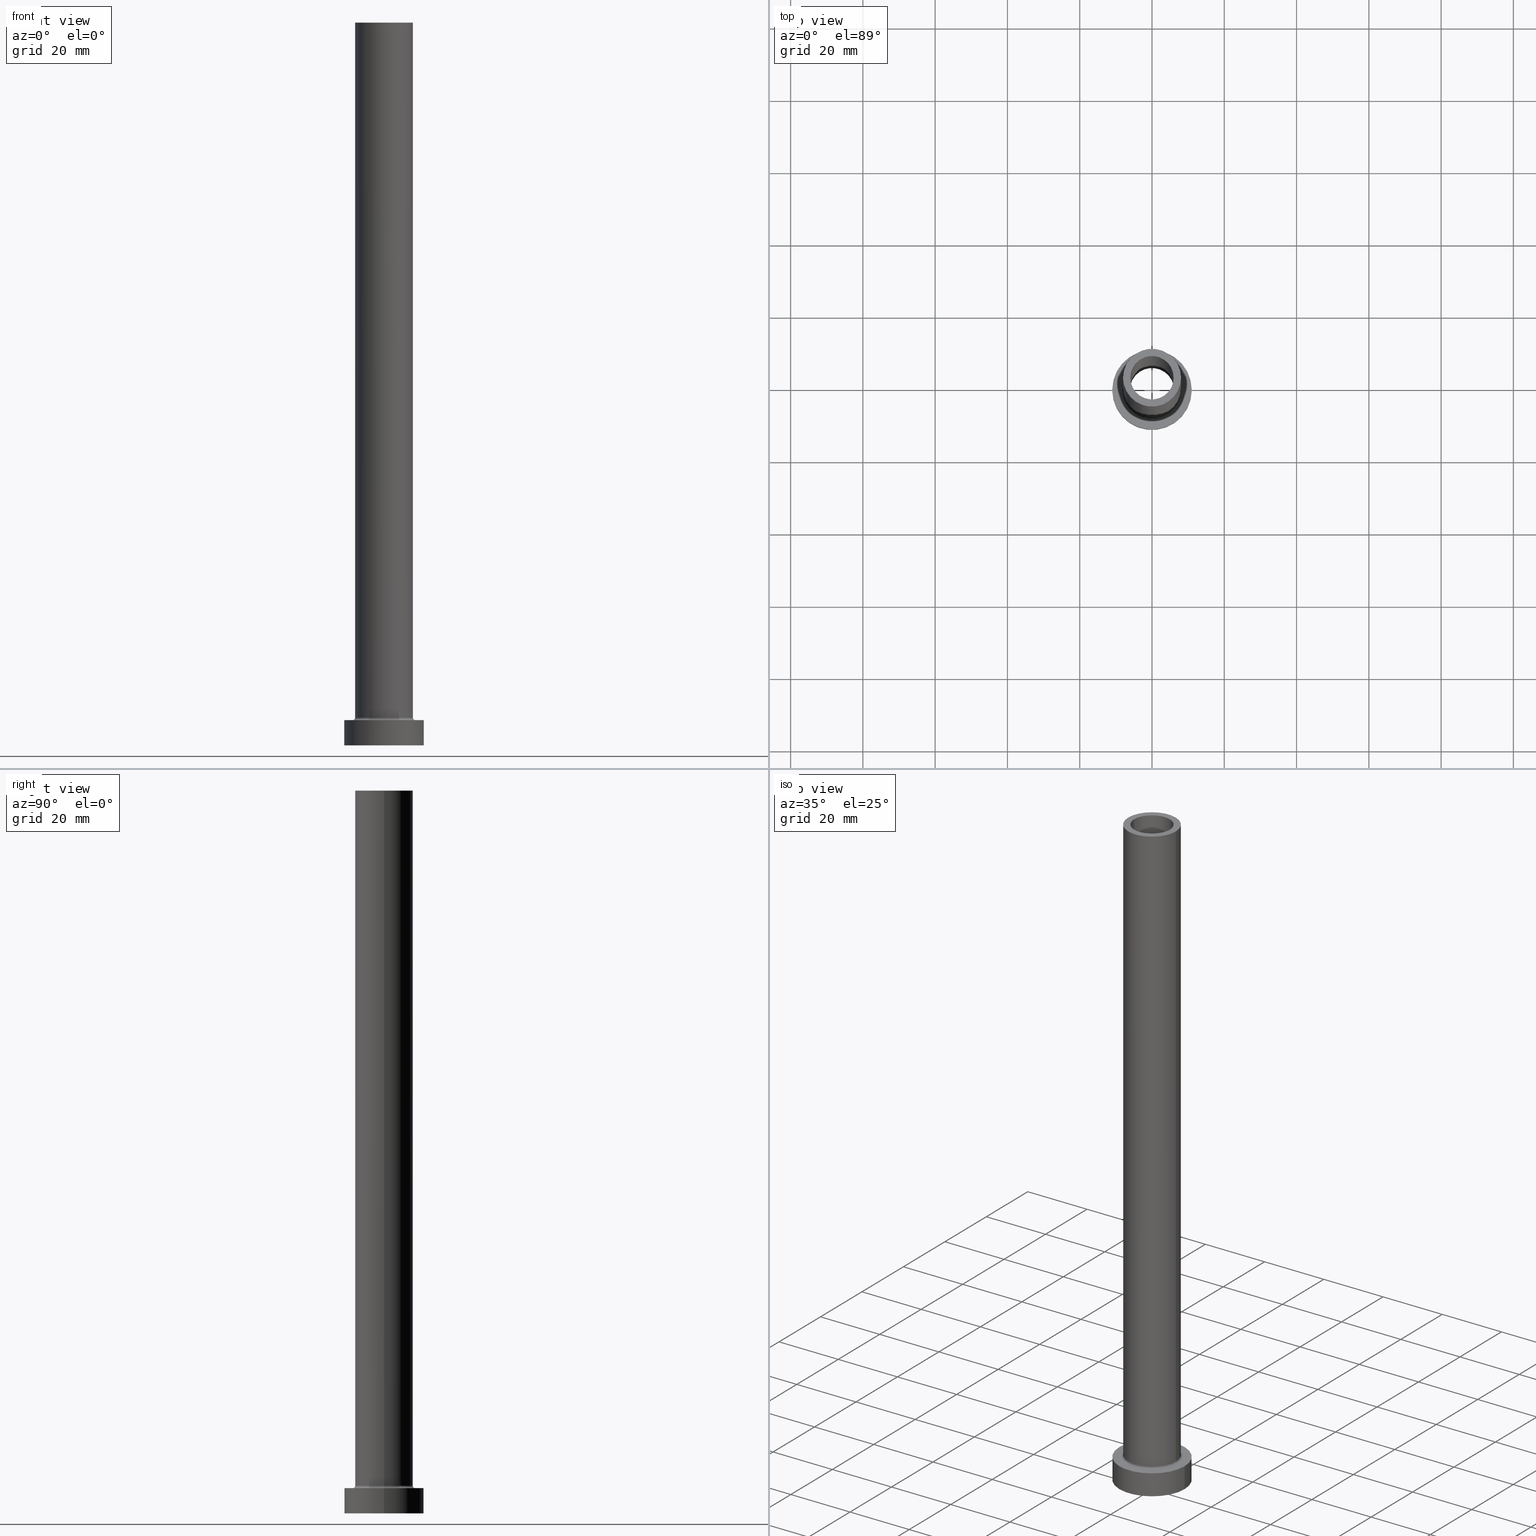
[diagram: canonical four-view strip — front | top / right | iso, engineering-drawing reading convention]
A machine part, canonical four-view strip (front | top / right | iso — engineering-drawing reading convention). The complete STEP part file that produces these views, byte-faithful:
ISO-10303-21;
HEADER;
FILE_DESCRIPTION (( 'STEP AP203' ),
    '1' );
FILE_NAME ('bcd4.STEP',
    '2023-02-13T07:42:02',
    ( '' ),
    ( '' ),
    'SwSTEP 2.0',
    'SolidWorks 2019',
    '' );
FILE_SCHEMA (( 'CONFIG_CONTROL_DESIGN' ));
ENDSEC;

DATA;
#1 = APPROVAL_PERSON_ORGANIZATION ( #371, #75, #112 ) ;
#2 = AXIS2_PLACEMENT_3D ( 'NONE', #231, #338, #189 ) ;
#3 = LINE ( 'NONE', #73, #121 ) ;
#4 = CARTESIAN_POINT ( 'NONE',  ( 6.150000000000000355, 7.531577814756222064E-16, 155.0000000000000284 ) ) ;
#5 = AXIS2_PLACEMENT_3D ( 'NONE', #170, #323, #333 ) ;
#6 = DIRECTION ( 'NONE',  ( -1.000000000000000000, 0.000000000000000000, 0.000000000000000000 ) ) ;
#7 = CARTESIAN_POINT ( 'NONE',  ( 6.150000000000000355, 7.531577814756222064E-16, 0.000000000000000000 ) ) ;
#8 = CARTESIAN_POINT ( 'NONE',  ( 0.000000000000000000, 0.000000000000000000, 200.0000000000000000 ) ) ;
#9 = PRODUCT_DEFINITION ( 'NEZN�M�', '', #392, #167 ) ;
#10 = CIRCLE ( 'NONE', #322, 8.699999999999999289 ) ;
#11 = CIRCLE ( 'NONE', #272, 6.150000000000000355 ) ;
#12 = ORIENTED_EDGE ( 'NONE', *, *, #225, .F. ) ;
#13 = CARTESIAN_POINT ( 'NONE',  ( 0.000000000000000000, 0.000000000000000000, 155.0000000000000284 ) ) ;
#14 = EDGE_CURVE ( 'NONE', #309, #459, #436, .T. ) ;
#15 = DIRECTION ( 'NONE',  ( 0.000000000000000000, 0.000000000000000000, 1.000000000000000000 ) ) ;
#16 = EDGE_LOOP ( 'NONE', ( #320, #153, #417, #201 ) ) ;
#17 = CARTESIAN_POINT ( 'NONE',  ( -8.000000000000000000, 0.000000000000000000, 7.700000000000012612 ) ) ;
#18 = CIRCLE ( 'NONE', #34, 8.699999999999999289 ) ;
#19 = DIRECTION ( 'NONE',  ( 1.000000000000000000, 0.000000000000000000, 0.000000000000000000 ) ) ;
#20 = ORIENTED_EDGE ( 'NONE', *, *, #151, .T. ) ;
#21 = ORIENTED_EDGE ( 'NONE', *, *, #372, .T. ) ;
#22 = DIRECTION ( 'NONE',  ( -0.000000000000000000, -0.000000000000000000, -1.000000000000000000 ) ) ;
#23 = ADVANCED_FACE ( 'NONE', ( #95 ), #60, .T. ) ;
#24 = DIRECTION ( 'NONE',  ( 1.000000000000000000, 0.000000000000000000, 0.000000000000000000 ) ) ;
#25 = ORIENTED_EDGE ( 'NONE', *, *, #63, .T. ) ;
#26 = FACE_BOUND ( 'NONE', #298, .T. ) ;
#27 = APPLICATION_PROTOCOL_DEFINITION ( 'international standard', 'config_control_design', 1994, #139 ) ;
#28 = CIRCLE ( 'NONE', #78, 11.00000000000000000 ) ;
#29 = DIRECTION ( 'NONE',  ( -0.000000000000000000, -0.000000000000000000, -1.000000000000000000 ) ) ;
#30 = CC_DESIGN_PERSON_AND_ORGANIZATION_ASSIGNMENT ( #39, #140, ( #9 ) ) ;
#31 = DIRECTION ( 'NONE',  ( -1.000000000000000000, 0.000000000000000000, 0.000000000000000000 ) ) ;
#32 = VECTOR ( 'NONE', #318, 1000.000000000000000 ) ;
#33 = APPROVAL_STATUS ( 'not_yet_approved' ) ;
#34 = AXIS2_PLACEMENT_3D ( 'NONE', #433, #426, #397 ) ;
#35 = ORIENTED_EDGE ( 'NONE', *, *, #220, .T. ) ;
#36 = DIRECTION ( 'NONE',  ( -1.000000000000000000, 0.000000000000000000, 0.000000000000000000 ) ) ;
#37 = VECTOR ( 'NONE', #69, 1000.000000000000000 ) ;
#38 = EDGE_CURVE ( 'NONE', #196, #385, #18, .T. ) ;
#39 = PERSON_AND_ORGANIZATION ( #301, #65 ) ;
#40 = DIRECTION ( 'NONE',  ( 0.000000000000000000, 0.000000000000000000, -1.000000000000000000 ) ) ;
#41 = EDGE_CURVE ( 'NONE', #307, #415, #168, .T. ) ;
#42 = CYLINDRICAL_SURFACE ( 'NONE', #186, 11.00000000000000000 ) ;
#43 = DIRECTION ( 'NONE',  ( 0.000000000000000000, 0.000000000000000000, 1.000000000000000000 ) ) ;
#44 = ADVANCED_FACE ( 'NONE', ( #208 ), #428, .T. ) ;
#45 = CARTESIAN_POINT ( 'NONE',  ( 0.000000000000000000, 0.000000000000000000, 7.000000000000000000 ) ) ;
#46 = CIRCLE ( 'NONE', #180, 8.000000000000000000 ) ;
#47 = CARTESIAN_POINT ( 'NONE',  ( 0.000000000000000000, 0.000000000000000000, 0.000000000000000000 ) ) ;
#48 = ORIENTED_EDGE ( 'NONE', *, *, #63, .F. ) ;
#49 = ORIENTED_EDGE ( 'NONE', *, *, #337, .F. ) ;
#50 = AXIS2_PLACEMENT_3D ( 'NONE', #76, #43, #370 ) ;
#51 = DIRECTION ( 'NONE',  ( 1.000000000000000000, 0.000000000000000000, 0.000000000000000000 ) ) ;
#52 = VERTEX_POINT ( 'NONE', #106 ) ;
#53 = LINE ( 'NONE', #194, #304 ) ;
#54 = PRODUCT_RELATED_PRODUCT_CATEGORY ( 'detail', '', ( #431 ) ) ;
#55 = PERSON_AND_ORGANIZATION ( #301, #65 ) ;
#56 = APPLICATION_CONTEXT ( 'configuration controlled 3d designs of mechanical parts and assemblies' ) ;
#57 = CARTESIAN_POINT ( 'NONE',  ( 0.000000000000000000, 0.000000000000000000, 7.700000000000012612 ) ) ;
#58 = ORIENTED_EDGE ( 'NONE', *, *, #212, .F. ) ;
#59 = LINE ( 'NONE', #197, #32 ) ;
#60 = CYLINDRICAL_SURFACE ( 'NONE', #177, 8.000000000000000000 ) ;
#61 = ORIENTED_EDGE ( 'NONE', *, *, #115, .T. ) ;
#62 = CARTESIAN_POINT ( 'NONE',  ( 0.000000000000000000, 0.000000000000000000, 7.000000000000000000 ) ) ;
#63 = EDGE_CURVE ( 'NONE', #282, #190, #438, .T. ) ;
#64 = DIRECTION ( 'NONE',  ( 1.000000000000000000, 0.000000000000000000, 0.000000000000000000 ) ) ;
#65 = ORGANIZATION ( 'NEUR�EN�', 'NEUR�EN�', '' ) ;
#66 = SECURITY_CLASSIFICATION ( '', '', #357 ) ;
#67 = VECTOR ( 'NONE', #308, 1000.000000000000000 ) ;
#68 = CIRCLE ( 'NONE', #335, 6.150000000000000355 ) ;
#69 = DIRECTION ( 'NONE',  ( 0.000000000000000000, 0.000000000000000000, -1.000000000000000000 ) ) ;
#70 = ADVANCED_FACE ( 'NONE', ( #369, #373 ), #218, .F. ) ;
#71 = FACE_OUTER_BOUND ( 'NONE', #447, .T. ) ;
#72 = DIRECTION ( 'NONE',  ( -1.000000000000000000, 1.224646799147353207E-16, 0.000000000000000000 ) ) ;
#73 = CARTESIAN_POINT ( 'NONE',  ( -8.000000000000000000, 0.000000000000000000, 200.0000000000000000 ) ) ;
#74 = APPROVAL_STATUS ( 'not_yet_approved' ) ;
#75 = APPROVAL ( #74, 'NEUR�EN�' ) ;
#76 = CARTESIAN_POINT ( 'NONE',  ( 0.000000000000000000, 0.000000000000000000, 7.700000000000012612 ) ) ;
#77 = AXIS2_PLACEMENT_3D ( 'NONE', #200, #340, #384 ) ;
#78 = AXIS2_PLACEMENT_3D ( 'NONE', #306, #229, #24 ) ;
#79 = DIRECTION ( 'NONE',  ( 0.000000000000000000, 0.000000000000000000, 1.000000000000000000 ) ) ;
#80 = CARTESIAN_POINT ( 'NONE',  ( 6.000000000000000888, 7.347880794884119736E-16, 155.0000000000000284 ) ) ;
#81 = ORIENTED_EDGE ( 'NONE', *, *, #317, .T. ) ;
#82 = AXIS2_PLACEMENT_3D ( 'NONE', #255, #179, #36 ) ;
#83 = CARTESIAN_POINT ( 'NONE',  ( 0.000000000000000000, 0.000000000000000000, 200.0000000000000000 ) ) ;
#84 = EDGE_LOOP ( 'NONE', ( #271, #61, #35, #379 ) ) ;
#85 = EDGE_CURVE ( 'NONE', #315, #381, #361, .T. ) ;
#86 = DIRECTION ( 'NONE',  ( -0.000000000000000000, -0.000000000000000000, -1.000000000000000000 ) ) ;
#87 = ORIENTED_EDGE ( 'NONE', *, *, #342, .F. ) ;
#88 = TOROIDAL_SURFACE ( 'NONE', #319, 8.699999999999999289, 0.6999999999999999556 ) ;
#89 = CARTESIAN_POINT ( 'NONE',  ( 0.000000000000000000, 0.000000000000000000, 200.0000000000000000 ) ) ;
#90 = PERSON_AND_ORGANIZATION ( #301, #65 ) ;
#91 = AXIS2_PLACEMENT_3D ( 'NONE', #442, #114, #366 ) ;
#92 = CARTESIAN_POINT ( 'NONE',  ( -6.150000000000000355, 0.000000000000000000, 155.0000000000000284 ) ) ;
#93 = ORIENTED_EDGE ( 'NONE', *, *, #325, .F. ) ;
#94 = PERSON_AND_ORGANIZATION ( #301, #65 ) ;
#95 = FACE_OUTER_BOUND ( 'NONE', #344, .T. ) ;
#96 = DIRECTION ( 'NONE',  ( 1.000000000000000000, 0.000000000000000000, 0.000000000000000000 ) ) ;
#97 = EDGE_LOOP ( 'NONE', ( #324, #193, #155, #303 ) ) ;
#98 = VECTOR ( 'NONE', #40, 1000.000000000000000 ) ;
#99 = DIRECTION ( 'NONE',  ( 1.000000000000000000, 0.000000000000000000, 0.000000000000000000 ) ) ;
#100 = APPROVAL_STATUS ( 'not_yet_approved' ) ;
#101 = PERSON_AND_ORGANIZATION ( #301, #65 ) ;
#102 = DIRECTION ( 'NONE',  ( 0.000000000000000000, 0.000000000000000000, 1.000000000000000000 ) ) ;
#103 = AXIS2_PLACEMENT_3D ( 'NONE', #8, #363, #174 ) ;
#104 = ORIENTED_EDGE ( 'NONE', *, *, #435, .T. ) ;
#105 = CARTESIAN_POINT ( 'NONE',  ( 0.000000000000000000, 0.000000000000000000, 200.0000000000000000 ) ) ;
#106 = CARTESIAN_POINT ( 'NONE',  ( 8.000000000000000000, 9.797174393178825657E-16, 7.700000000000012612 ) ) ;
#107 = DIRECTION ( 'NONE',  ( 1.000000000000000000, 0.000000000000000000, 0.000000000000000000 ) ) ;
#108 = CYLINDRICAL_SURFACE ( 'NONE', #5, 6.150000000000000355 ) ;
#109 = AXIS2_PLACEMENT_3D ( 'NONE', #83, #122, #270 ) ;
#110 = APPROVAL ( #100, 'NEUR�EN�' ) ;
#111 = DIRECTION ( 'NONE',  ( 1.000000000000000000, 0.000000000000000000, 0.000000000000000000 ) ) ;
#112 = APPROVAL_ROLE ( '' ) ;
#113 = AXIS2_PLACEMENT_3D ( 'NONE', #89, #419, #233 ) ;
#114 = DIRECTION ( 'NONE',  ( 0.000000000000000000, 0.000000000000000000, 1.000000000000000000 ) ) ;
#115 = EDGE_CURVE ( 'NONE', #381, #315, #11, .T. ) ;
#116 = ORIENTED_EDGE ( 'NONE', *, *, #279, .F. ) ;
#117 = DIRECTION ( 'NONE',  ( -1.000000000000000000, 0.000000000000000000, 0.000000000000000000 ) ) ;
#118 = VERTEX_POINT ( 'NONE', #7 ) ;
#119 = CARTESIAN_POINT ( 'NONE',  ( -6.150000000000000355, 0.000000000000000000, 0.000000000000000000 ) ) ;
#120 = EDGE_CURVE ( 'NONE', #118, #128, #68, .T. ) ;
#121 = VECTOR ( 'NONE', #367, 1000.000000000000000 ) ;
#122 = DIRECTION ( 'NONE',  ( 0.000000000000000000, 0.000000000000000000, 1.000000000000000000 ) ) ;
#123 = ORIENTED_EDGE ( 'NONE', *, *, #41, .F. ) ;
#124 = CIRCLE ( 'NONE', #223, 11.00000000000000000 ) ;
#125 = CARTESIAN_POINT ( 'NONE',  ( 0.000000000000000000, 0.000000000000000000, 7.700000000000012612 ) ) ;
#126 = VERTEX_POINT ( 'NONE', #17 ) ;
#127 = PLANE ( 'NONE',  #2 ) ;
#128 = VERTEX_POINT ( 'NONE', #119 ) ;
#129 = LINE ( 'NONE', #382, #269 ) ;
#130 = DATE_AND_TIME ( #159, #448 ) ;
#131 = ORIENTED_EDGE ( 'NONE', *, *, #256, .T. ) ;
#132 = CIRCLE ( 'NONE', #345, 8.000000000000000000 ) ;
#133 = DIRECTION ( 'NONE',  ( 0.000000000000000000, 0.000000000000000000, 1.000000000000000000 ) ) ;
#134 = EDGE_LOOP ( 'NONE', ( #150, #359 ) ) ;
#135 = MECHANICAL_CONTEXT ( 'NONE', #56, 'mechanical' ) ;
#136 = APPROVAL_DATE_TIME ( #434, #205 ) ;
#137 = DIRECTION ( 'NONE',  ( 0.000000000000000000, 0.000000000000000000, 1.000000000000000000 ) ) ;
#138 = ADVANCED_FACE ( 'NONE', ( #351 ), #191, .F. ) ;
#139 = APPLICATION_CONTEXT ( 'configuration controlled 3d designs of mechanical parts and assemblies' ) ;
#140 = PERSON_AND_ORGANIZATION_ROLE ( 'creator' ) ;
#141 = FACE_OUTER_BOUND ( 'NONE', #230, .T. ) ;
#142 = CARTESIAN_POINT ( 'NONE',  ( -8.000000000000000000, 0.000000000000000000, 200.0000000000000000 ) ) ;
#143 = AXIS2_PLACEMENT_3D ( 'NONE', #352, #133, #162 ) ;
#144 = CARTESIAN_POINT ( 'NONE',  ( 0.000000000000000000, 0.000000000000000000, 0.000000000000000000 ) ) ;
#145 = CYLINDRICAL_SURFACE ( 'NONE', #103, 8.000000000000000000 ) ;
#146 = CIRCLE ( 'NONE', #253, 6.000000000000000888 ) ;
#147 = CARTESIAN_POINT ( 'NONE',  ( -8.699999999999999289, 1.065442715258197248E-15, 7.000000000000006217 ) ) ;
#148 = ORIENTED_EDGE ( 'NONE', *, *, #38, .F. ) ;
#149 = DIRECTION ( 'NONE',  ( 0.000000000000000000, 0.000000000000000000, 1.000000000000000000 ) ) ;
#150 = ORIENTED_EDGE ( 'NONE', *, *, #85, .F. ) ;
#151 = EDGE_CURVE ( 'NONE', #307, #52, #129, .T. ) ;
#152 = CARTESIAN_POINT ( 'NONE',  ( 0.000000000000000000, 0.000000000000000000, 172.3948268171890845 ) ) ;
#153 = ORIENTED_EDGE ( 'NONE', *, *, #400, .T. ) ;
#154 = LOCAL_TIME ( 8, 42, 2.000000000000000000, #399 ) ;
#155 = ORIENTED_EDGE ( 'NONE', *, *, #225, .T. ) ;
#156 = CARTESIAN_POINT ( 'NONE',  ( -11.00000000000000000, 0.000000000000000000, 0.000000000000000000 ) ) ;
#157 = FACE_OUTER_BOUND ( 'NONE', #203, .T. ) ;
#158 = ORIENTED_EDGE ( 'NONE', *, *, #41, .T. ) ;
#159 = CALENDAR_DATE ( 2023, 13, 2 ) ;
#160 = CARTESIAN_POINT ( 'NONE',  ( 0.000000000000000000, 0.000000000000000000, 0.000000000000000000 ) ) ;
#161 = CIRCLE ( 'NONE', #77, 6.000000000000000888 ) ;
#162 = DIRECTION ( 'NONE',  ( 1.000000000000000000, 0.000000000000000000, 0.000000000000000000 ) ) ;
#163 = PERSON_AND_ORGANIZATION_ROLE ( 'creator' ) ;
#164 = DIRECTION ( 'NONE',  ( 0.000000000000000000, 0.000000000000000000, 1.000000000000000000 ) ) ;
#165 = EDGE_CURVE ( 'NONE', #282, #166, #53, .T. ) ;
#166 = VERTEX_POINT ( 'NONE', #156 ) ;
#167 = DESIGN_CONTEXT ( 'detailed design', #139, 'design' ) ;
#168 = CIRCLE ( 'NONE', #443, 8.000000000000000000 ) ;
#169 = CARTESIAN_POINT ( 'NONE',  ( 11.00000000000000000, 1.347111479062088405E-15, 7.000000000000000000 ) ) ;
#170 = CARTESIAN_POINT ( 'NONE',  ( 0.000000000000000000, 0.000000000000000000, 172.3948268171890845 ) ) ;
#171 = ORIENTED_EDGE ( 'NONE', *, *, #14, .T. ) ;
#172 = ORIENTED_EDGE ( 'NONE', *, *, #405, .T. ) ;
#173 = APPROVAL_PERSON_ORGANIZATION ( #321, #205, #427 ) ;
#174 = DIRECTION ( 'NONE',  ( -1.000000000000000000, 0.000000000000000000, 0.000000000000000000 ) ) ;
#175 = EDGE_CURVE ( 'NONE', #459, #450, #59, .T. ) ;
#176 = LINE ( 'NONE', #327, #368 ) ;
#177 = AXIS2_PLACEMENT_3D ( 'NONE', #199, #29, #31 ) ;
#178 = APPROVAL_DATE_TIME ( #214, #110 ) ;
#179 = DIRECTION ( 'NONE',  ( 0.000000000000000000, 0.000000000000000000, -1.000000000000000000 ) ) ;
#180 = AXIS2_PLACEMENT_3D ( 'NONE', #105, #289, #107 ) ;
#181 = DIRECTION ( 'NONE',  ( 1.000000000000000000, 0.000000000000000000, 0.000000000000000000 ) ) ;
#182 = ADVANCED_FACE ( 'NONE', ( #26, #454 ), #275, .T. ) ;
#183 = CARTESIAN_POINT ( 'NONE',  ( 0.000000000000000000, 0.000000000000000000, 7.000000000000000000 ) ) ;
#184 = DIRECTION ( 'NONE',  ( 0.000000000000000000, 0.000000000000000000, 1.000000000000000000 ) ) ;
#185 = DIRECTION ( 'NONE',  ( 1.000000000000000000, 0.000000000000000000, 0.000000000000000000 ) ) ;
#186 = AXIS2_PLACEMENT_3D ( 'NONE', #45, #264, #6 ) ;
#187 = CC_DESIGN_PERSON_AND_ORGANIZATION_ASSIGNMENT ( #90, #383, ( #431 ) ) ;
#188 = DIRECTION ( 'NONE',  ( 0.000000000000000000, 0.000000000000000000, -1.000000000000000000 ) ) ;
#189 = DIRECTION ( 'NONE',  ( 1.000000000000000000, 0.000000000000000000, -0.000000000000000000 ) ) ;
#190 = VERTEX_POINT ( 'NONE', #169 ) ;
#191 = CYLINDRICAL_SURFACE ( 'NONE', #113, 6.000000000000000888 ) ;
#192 = FACE_OUTER_BOUND ( 'NONE', #265, .T. ) ;
#193 = ORIENTED_EDGE ( 'NONE', *, *, #439, .T. ) ;
#194 = CARTESIAN_POINT ( 'NONE',  ( -11.00000000000000000, 0.000000000000000000, 7.000000000000000000 ) ) ;
#195 = DIRECTION ( 'NONE',  ( 0.000000000000000000, 0.000000000000000000, 1.000000000000000000 ) ) ;
#196 = VERTEX_POINT ( 'NONE', #147 ) ;
#197 = CARTESIAN_POINT ( 'NONE',  ( -6.000000000000000888, 0.000000000000000000, 200.0000000000000000 ) ) ;
#198 = ADVANCED_FACE ( 'NONE', ( #302 ), #261, .F. ) ;
#199 = CARTESIAN_POINT ( 'NONE',  ( 0.000000000000000000, 0.000000000000000000, 200.0000000000000000 ) ) ;
#200 = CARTESIAN_POINT ( 'NONE',  ( 0.000000000000000000, 0.000000000000000000, 155.0000000000000284 ) ) ;
#201 = ORIENTED_EDGE ( 'NONE', *, *, #220, .F. ) ;
#202 = PERSON_AND_ORGANIZATION_ROLE ( 'design_supplier' ) ;
#203 = EDGE_LOOP ( 'NONE', ( #93, #410, #58, #116 ) ) ;
#204 = LOCAL_TIME ( 8, 42, 2.000000000000000000, #251 ) ;
#205 = APPROVAL ( #33, 'NEUR�EN�' ) ;
#206 = COORDINATED_UNIVERSAL_TIME_OFFSET ( 1, 0, .AHEAD. ) ;
#207 = ORIENTED_EDGE ( 'NONE', *, *, #386, .T. ) ;
#208 = FACE_OUTER_BOUND ( 'NONE', #339, .T. ) ;
#209 = CARTESIAN_POINT ( 'NONE',  ( -8.699999999999999289, 1.065442715258197248E-15, 7.700000000000012612 ) ) ;
#210 = COORDINATED_UNIVERSAL_TIME_OFFSET ( 1, 0, .AHEAD. ) ;
#211 = FACE_OUTER_BOUND ( 'NONE', #16, .T. ) ;
#212 = EDGE_CURVE ( 'NONE', #385, #196, #10, .T. ) ;
#213 =( GEOMETRIC_REPRESENTATION_CONTEXT ( 3 ) GLOBAL_UNCERTAINTY_ASSIGNED_CONTEXT ( ( #286 ) ) GLOBAL_UNIT_ASSIGNED_CONTEXT ( ( #305, #257, #396 ) ) REPRESENTATION_CONTEXT ( 'NONE', 'WORKASPACE' ) );
#214 = DATE_AND_TIME ( #216, #276 ) ;
#215 = LINE ( 'NONE', #365, #98 ) ;
#216 = CALENDAR_DATE ( 2023, 13, 2 ) ;
#217 = ORIENTED_EDGE ( 'NONE', *, *, #325, .T. ) ;
#218 = PLANE ( 'NONE',  #91 ) ;
#219 = CARTESIAN_POINT ( 'NONE',  ( 6.150000000000000355, 7.531577814756222064E-16, 172.3948268171890845 ) ) ;
#220 = EDGE_CURVE ( 'NONE', #315, #128, #346, .T. ) ;
#221 = AXIS2_PLACEMENT_3D ( 'NONE', #252, #290, #111 ) ;
#222 = CARTESIAN_POINT ( 'NONE',  ( 0.000000000000000000, 0.000000000000000000, 155.0000000000000284 ) ) ;
#223 = AXIS2_PLACEMENT_3D ( 'NONE', #160, #15, #411 ) ;
#224 = AXIS2_PLACEMENT_3D ( 'NONE', #281, #137, #389 ) ;
#225 = EDGE_CURVE ( 'NONE', #341, #166, #334, .T. ) ;
#226 = CARTESIAN_POINT ( 'NONE',  ( -6.000000000000000888, 0.000000000000000000, 200.0000000000000000 ) ) ;
#227 = ORIENTED_EDGE ( 'NONE', *, *, #405, .F. ) ;
#228 = AXIS2_PLACEMENT_3D ( 'NONE', #343, #86, #51 ) ;
#229 = DIRECTION ( 'NONE',  ( 0.000000000000000000, 0.000000000000000000, 1.000000000000000000 ) ) ;
#230 = EDGE_LOOP ( 'NONE', ( #421, #104, #240, #312 ) ) ;
#231 = CARTESIAN_POINT ( 'NONE',  ( 0.000000000000000000, 0.000000000000000000, 0.000000000000000000 ) ) ;
#232 = ORIENTED_EDGE ( 'NONE', *, *, #317, .F. ) ;
#233 = DIRECTION ( 'NONE',  ( -1.000000000000000000, 0.000000000000000000, 0.000000000000000000 ) ) ;
#234 = DIRECTION ( 'NONE',  ( 0.000000000000000000, 0.000000000000000000, 1.000000000000000000 ) ) ;
#235 = ORIENTED_EDGE ( 'NONE', *, *, #120, .F. ) ;
#236 = DIRECTION ( 'NONE',  ( -0.000000000000000000, -0.000000000000000000, -1.000000000000000000 ) ) ;
#237 = EDGE_CURVE ( 'NONE', #166, #341, #124, .T. ) ;
#238 = PERSON_AND_ORGANIZATION_ROLE ( 'classification_officer' ) ;
#239 = DIRECTION ( 'NONE',  ( 0.000000000000000000, 0.000000000000000000, -1.000000000000000000 ) ) ;
#240 = ORIENTED_EDGE ( 'NONE', *, *, #329, .F. ) ;
#241 = CARTESIAN_POINT ( 'NONE',  ( 0.000000000000000000, 0.000000000000000000, 7.000000000000000000 ) ) ;
#242 = ORIENTED_EDGE ( 'NONE', *, *, #329, .T. ) ;
#243 = VERTEX_POINT ( 'NONE', #80 ) ;
#244 = CC_DESIGN_DATE_AND_TIME_ASSIGNMENT ( #328, #259, ( #9 ) ) ;
#245 = LOCAL_TIME ( 8, 42, 2.000000000000000000, #206 ) ;
#246 = LINE ( 'NONE', #219, #37 ) ;
#247 = CARTESIAN_POINT ( 'NONE',  ( 0.000000000000000000, 0.000000000000000000, 200.0000000000000000 ) ) ;
#248 = CARTESIAN_POINT ( 'NONE',  ( 8.699999999999999289, 0.000000000000000000, 7.000000000000006217 ) ) ;
#249 = CARTESIAN_POINT ( 'NONE',  ( 0.000000000000000000, 0.000000000000000000, 7.000000000000000000 ) ) ;
#250 = ORIENTED_EDGE ( 'NONE', *, *, #38, .T. ) ;
#251 = COORDINATED_UNIVERSAL_TIME_OFFSET ( 1, 0, .AHEAD. ) ;
#252 = CARTESIAN_POINT ( 'NONE',  ( 0.000000000000000000, 0.000000000000000000, 200.0000000000000000 ) ) ;
#253 = AXIS2_PLACEMENT_3D ( 'NONE', #316, #456, #19 ) ;
#254 = CARTESIAN_POINT ( 'NONE',  ( -6.000000000000000888, 0.000000000000000000, 155.0000000000000284 ) ) ;
#255 = CARTESIAN_POINT ( 'NONE',  ( 0.000000000000000000, 0.000000000000000000, 200.0000000000000000 ) ) ;
#256 = EDGE_CURVE ( 'NONE', #190, #282, #28, .T. ) ;
#257 =( NAMED_UNIT ( * ) PLANE_ANGLE_UNIT ( ) SI_UNIT ( $, .RADIAN. ) );
#258 = AXIS2_PLACEMENT_3D ( 'NONE', #62, #362, #287 ) ;
#259 = DATE_TIME_ROLE ( 'creation_date' ) ;
#260 = ADVANCED_FACE ( 'NONE', ( #449, #444 ), #127, .F. ) ;
#261 = TOROIDAL_SURFACE ( 'NONE', #50, 8.699999999999999289, 0.6999999999999999556 ) ;
#262 = EDGE_LOOP ( 'NONE', ( #242, #81 ) ) ;
#263 = CLOSED_SHELL ( 'NONE', ( #360, #424, #288, #429, #451, #44, #182, #260, #23, #297, #198, #311, #70, #138 ) ) ;
#264 = DIRECTION ( 'NONE',  ( -0.000000000000000000, -0.000000000000000000, -1.000000000000000000 ) ) ;
#265 = EDGE_LOOP ( 'NONE', ( #21, #158 ) ) ;
#266 = CC_DESIGN_APPROVAL ( #75, ( #392 ) ) ;
#267 = CARTESIAN_POINT ( 'NONE',  ( 6.000000000000000888, 7.347880794884119736E-16, 200.0000000000000000 ) ) ;
#268 = ORIENTED_EDGE ( 'NONE', *, *, #151, .F. ) ;
#269 = VECTOR ( 'NONE', #236, 1000.000000000000000 ) ;
#270 = DIRECTION ( 'NONE',  ( 1.000000000000000000, 0.000000000000000000, -0.000000000000000000 ) ) ;
#271 = ORIENTED_EDGE ( 'NONE', *, *, #400, .F. ) ;
#272 = AXIS2_PLACEMENT_3D ( 'NONE', #13, #79, #181 ) ;
#273 = PLANE ( 'NONE',  #109 ) ;
#274 = ORIENTED_EDGE ( 'NONE', *, *, #237, .F. ) ;
#275 = PLANE ( 'NONE',  #294 ) ;
#276 = LOCAL_TIME ( 8, 42, 2.000000000000000000, #210 ) ;
#277 = ORIENTED_EDGE ( 'NONE', *, *, #165, .T. ) ;
#278 = CARTESIAN_POINT ( 'NONE',  ( -11.00000000000000000, 0.000000000000000000, 7.000000000000000000 ) ) ;
#279 = EDGE_CURVE ( 'NONE', #52, #385, #326, .T. ) ;
#280 = DATE_AND_TIME ( #353, #154 ) ;
#281 = CARTESIAN_POINT ( 'NONE',  ( 0.000000000000000000, 0.000000000000000000, 200.0000000000000000 ) ) ;
#282 = VERTEX_POINT ( 'NONE', #278 ) ;
#283 = CARTESIAN_POINT ( 'NONE',  ( 11.00000000000000000, 1.347111479062088405E-15, 0.000000000000000000 ) ) ;
#284 = ORIENTED_EDGE ( 'NONE', *, *, #175, .T. ) ;
#285 = PRODUCT_DEFINITION_SHAPE ( 'NONE', 'NONE',  #9 ) ;
#286 = UNCERTAINTY_MEASURE_WITH_UNIT (LENGTH_MEASURE( 1.000000000000000082E-05 ), #305, 'distance_accuracy_value', 'NONE');
#287 = DIRECTION ( 'NONE',  ( -1.000000000000000000, 0.000000000000000000, 0.000000000000000000 ) ) ;
#288 = ADVANCED_FACE ( 'NONE', ( #157 ), #88, .F. ) ;
#289 = DIRECTION ( 'NONE',  ( 0.000000000000000000, 0.000000000000000000, 1.000000000000000000 ) ) ;
#290 = DIRECTION ( 'NONE',  ( 0.000000000000000000, 0.000000000000000000, 1.000000000000000000 ) ) ;
#291 = DIRECTION ( 'NONE',  ( -0.000000000000000000, -0.000000000000000000, -1.000000000000000000 ) ) ;
#292 = CIRCLE ( 'NONE', #332, 0.6999999999999992895 ) ;
#293 = CC_DESIGN_PERSON_AND_ORGANIZATION_ASSIGNMENT ( #101, #238, ( #66 ) ) ;
#294 = AXIS2_PLACEMENT_3D ( 'NONE', #241, #102, #395 ) ;
#295 = CYLINDRICAL_SURFACE ( 'NONE', #82, 6.000000000000000888 ) ;
#296 = AXIS2_PLACEMENT_3D ( 'NONE', #249, #184, #406 ) ;
#297 = ADVANCED_FACE ( 'NONE', ( #374, #192 ), #273, .T. ) ;
#298 = EDGE_LOOP ( 'NONE', ( #347, #250 ) ) ;
#299 = CC_DESIGN_SECURITY_CLASSIFICATION ( #66, ( #392 ) ) ;
#300 = PERSON_AND_ORGANIZATION ( #301, #65 ) ;
#301 = PERSON ( 'NEUR�EN�', 'NEUR�EN�', 'NEUR�EN�', ('NEUR�EN�'), ('NEUR�EN�'), ('NEUR�EN�') ) ;
#302 = FACE_OUTER_BOUND ( 'NONE', #354, .T. ) ;
#303 = ORIENTED_EDGE ( 'NONE', *, *, #165, .F. ) ;
#304 = VECTOR ( 'NONE', #22, 1000.000000000000000 ) ;
#305 =( LENGTH_UNIT ( ) NAMED_UNIT ( * ) SI_UNIT ( .MILLI., .METRE. ) );
#306 = CARTESIAN_POINT ( 'NONE',  ( 0.000000000000000000, 0.000000000000000000, 7.000000000000000000 ) ) ;
#307 = VERTEX_POINT ( 'NONE', #387 ) ;
#308 = DIRECTION ( 'NONE',  ( 0.000000000000000000, 0.000000000000000000, -1.000000000000000000 ) ) ;
#309 = VERTEX_POINT ( 'NONE', #267 ) ;
#310 = CC_DESIGN_APPROVAL ( #205, ( #66 ) ) ;
#311 = ADVANCED_FACE ( 'NONE', ( #452 ), #422, .F. ) ;
#312 = ORIENTED_EDGE ( 'NONE', *, *, #175, .F. ) ;
#313 = DIRECTION ( 'NONE',  ( 1.000000000000000000, 0.000000000000000000, 0.000000000000000000 ) ) ;
#314 = EDGE_LOOP ( 'NONE', ( #441, #171, #284, #232 ) ) ;
#315 = VERTEX_POINT ( 'NONE', #92 ) ;
#316 = CARTESIAN_POINT ( 'NONE',  ( 0.000000000000000000, 0.000000000000000000, 155.0000000000000284 ) ) ;
#317 = EDGE_CURVE ( 'NONE', #243, #450, #161, .T. ) ;
#318 = DIRECTION ( 'NONE',  ( 0.000000000000000000, 0.000000000000000000, -1.000000000000000000 ) ) ;
#319 = AXIS2_PLACEMENT_3D ( 'NONE', #125, #149, #96 ) ;
#320 = ORIENTED_EDGE ( 'NONE', *, *, #85, .T. ) ;
#321 = PERSON_AND_ORGANIZATION ( #301, #65 ) ;
#322 = AXIS2_PLACEMENT_3D ( 'NONE', #183, #440, #380 ) ;
#323 = DIRECTION ( 'NONE',  ( 0.000000000000000000, 0.000000000000000000, -1.000000000000000000 ) ) ;
#324 = ORIENTED_EDGE ( 'NONE', *, *, #256, .F. ) ;
#325 = EDGE_CURVE ( 'NONE', #126, #52, #413, .T. ) ;
#326 = CIRCLE ( 'NONE', #388, 0.7000000000000000666 ) ;
#327 = CARTESIAN_POINT ( 'NONE',  ( 11.00000000000000000, 1.347111479062088405E-15, 7.000000000000000000 ) ) ;
#328 = DATE_AND_TIME ( #403, #204 ) ;
#329 = EDGE_CURVE ( 'NONE', #450, #243, #146, .T. ) ;
#330 = DIRECTION ( 'NONE',  ( 0.000000000000000000, 0.000000000000000000, 1.000000000000000000 ) ) ;
#331 = APPROVAL_PERSON_ORGANIZATION ( #300, #110, #461 ) ;
#332 = AXIS2_PLACEMENT_3D ( 'NONE', #209, #437, #72 ) ;
#333 = DIRECTION ( 'NONE',  ( -1.000000000000000000, 0.000000000000000000, 0.000000000000000000 ) ) ;
#334 = CIRCLE ( 'NONE', #409, 11.00000000000000000 ) ;
#335 = AXIS2_PLACEMENT_3D ( 'NONE', #144, #416, #64 ) ;
#336 = DIRECTION ( 'NONE',  ( 0.000000000000000000, 0.000000000000000000, 1.000000000000000000 ) ) ;
#337 = EDGE_CURVE ( 'NONE', #128, #118, #356, .T. ) ;
#338 = DIRECTION ( 'NONE',  ( 0.000000000000000000, 0.000000000000000000, 1.000000000000000000 ) ) ;
#339 = EDGE_LOOP ( 'NONE', ( #391, #48, #277, #455 ) ) ;
#340 = DIRECTION ( 'NONE',  ( 0.000000000000000000, 0.000000000000000000, 1.000000000000000000 ) ) ;
#341 = VERTEX_POINT ( 'NONE', #283 ) ;
#342 = EDGE_CURVE ( 'NONE', #126, #196, #292, .T. ) ;
#343 = CARTESIAN_POINT ( 'NONE',  ( 0.000000000000000000, 0.000000000000000000, 0.000000000000000000 ) ) ;
#344 = EDGE_LOOP ( 'NONE', ( #268, #350, #172, #217 ) ) ;
#345 = AXIS2_PLACEMENT_3D ( 'NONE', #402, #330, #398 ) ;
#346 = LINE ( 'NONE', #349, #67 ) ;
#347 = ORIENTED_EDGE ( 'NONE', *, *, #212, .T. ) ;
#348 = EDGE_CURVE ( 'NONE', #459, #309, #364, .T. ) ;
#349 = CARTESIAN_POINT ( 'NONE',  ( -6.150000000000000355, 0.000000000000000000, 172.3948268171890845 ) ) ;
#350 = ORIENTED_EDGE ( 'NONE', *, *, #372, .F. ) ;
#351 = FACE_OUTER_BOUND ( 'NONE', #314, .T. ) ;
#352 = CARTESIAN_POINT ( 'NONE',  ( 0.000000000000000000, 0.000000000000000000, 0.000000000000000000 ) ) ;
#353 = CALENDAR_DATE ( 2023, 13, 2 ) ;
#354 = EDGE_LOOP ( 'NONE', ( #87, #375, #412, #148 ) ) ;
#355 = APPLICATION_PROTOCOL_DEFINITION ( 'international standard', 'config_control_design', 1994, #56 ) ;
#356 = CIRCLE ( 'NONE', #228, 6.150000000000000355 ) ;
#357 = SECURITY_CLASSIFICATION_LEVEL ( 'unclassified' ) ;
#358 = ORIENTED_EDGE ( 'NONE', *, *, #14, .F. ) ;
#359 = ORIENTED_EDGE ( 'NONE', *, *, #115, .F. ) ;
#360 = ADVANCED_FACE ( 'NONE', ( #141 ), #295, .F. ) ;
#361 = CIRCLE ( 'NONE', #418, 6.150000000000000355 ) ;
#362 = DIRECTION ( 'NONE',  ( -0.000000000000000000, -0.000000000000000000, -1.000000000000000000 ) ) ;
#363 = DIRECTION ( 'NONE',  ( -0.000000000000000000, -0.000000000000000000, -1.000000000000000000 ) ) ;
#364 = CIRCLE ( 'NONE', #221, 6.000000000000000888 ) ;
#365 = CARTESIAN_POINT ( 'NONE',  ( 6.000000000000000888, 7.347880794884119736E-16, 200.0000000000000000 ) ) ;
#366 = DIRECTION ( 'NONE',  ( 1.000000000000000000, 0.000000000000000000, -0.000000000000000000 ) ) ;
#367 = DIRECTION ( 'NONE',  ( -0.000000000000000000, -0.000000000000000000, -1.000000000000000000 ) ) ;
#368 = VECTOR ( 'NONE', #291, 1000.000000000000000 ) ;
#369 = FACE_BOUND ( 'NONE', #262, .T. ) ;
#370 = DIRECTION ( 'NONE',  ( 1.000000000000000000, 0.000000000000000000, 0.000000000000000000 ) ) ;
#371 = PERSON_AND_ORGANIZATION ( #301, #65 ) ;
#372 = EDGE_CURVE ( 'NONE', #415, #307, #46, .T. ) ;
#373 = FACE_OUTER_BOUND ( 'NONE', #134, .T. ) ;
#374 = FACE_BOUND ( 'NONE', #423, .T. ) ;
#375 = ORIENTED_EDGE ( 'NONE', *, *, #386, .F. ) ;
#376 = AXIS2_PLACEMENT_3D ( 'NONE', #152, #188, #117 ) ;
#377 = CC_DESIGN_PERSON_AND_ORGANIZATION_ASSIGNMENT ( #55, #202, ( #392 ) ) ;
#378 = DIRECTION ( 'NONE',  ( 0.000000000000000000, -1.000000000000000000, 0.000000000000000000 ) ) ;
#379 = ORIENTED_EDGE ( 'NONE', *, *, #337, .T. ) ;
#380 = DIRECTION ( 'NONE',  ( 1.000000000000000000, 0.000000000000000000, 0.000000000000000000 ) ) ;
#381 = VERTEX_POINT ( 'NONE', #4 ) ;
#382 = CARTESIAN_POINT ( 'NONE',  ( 8.000000000000000000, 9.797174393178825657E-16, 200.0000000000000000 ) ) ;
#383 = PERSON_AND_ORGANIZATION_ROLE ( 'design_owner' ) ;
#384 = DIRECTION ( 'NONE',  ( 1.000000000000000000, 0.000000000000000000, 0.000000000000000000 ) ) ;
#385 = VERTEX_POINT ( 'NONE', #248 ) ;
#386 = EDGE_CURVE ( 'NONE', #52, #126, #132, .T. ) ;
#387 = CARTESIAN_POINT ( 'NONE',  ( 8.000000000000000000, 9.797174393178825657E-16, 200.0000000000000000 ) ) ;
#388 = AXIS2_PLACEMENT_3D ( 'NONE', #446, #378, #239 ) ;
#389 = DIRECTION ( 'NONE',  ( 1.000000000000000000, 0.000000000000000000, 0.000000000000000000 ) ) ;
#390 = COORDINATED_UNIVERSAL_TIME_OFFSET ( 1, 0, .AHEAD. ) ;
#391 = ORIENTED_EDGE ( 'NONE', *, *, #439, .F. ) ;
#392 = PRODUCT_DEFINITION_FORMATION_WITH_SPECIFIED_SOURCE ( 'LIBOVOLN�', '', #431, .NOT_KNOWN. ) ;
#393 = EDGE_LOOP ( 'NONE', ( #49, #235 ) ) ;
#394 = CC_DESIGN_DATE_AND_TIME_ASSIGNMENT ( #130, #425, ( #66 ) ) ;
#395 = DIRECTION ( 'NONE',  ( 1.000000000000000000, 0.000000000000000000, -0.000000000000000000 ) ) ;
#396 =( NAMED_UNIT ( * ) SI_UNIT ( $, .STERADIAN. ) SOLID_ANGLE_UNIT ( ) );
#397 = DIRECTION ( 'NONE',  ( 1.000000000000000000, 0.000000000000000000, 0.000000000000000000 ) ) ;
#398 = DIRECTION ( 'NONE',  ( 1.000000000000000000, 0.000000000000000000, 0.000000000000000000 ) ) ;
#399 = COORDINATED_UNIVERSAL_TIME_OFFSET ( 1, 0, .AHEAD. ) ;
#400 = EDGE_CURVE ( 'NONE', #381, #118, #246, .T. ) ;
#401 = FACE_OUTER_BOUND ( 'NONE', #97, .T. ) ;
#402 = CARTESIAN_POINT ( 'NONE',  ( 0.000000000000000000, 0.000000000000000000, 7.700000000000012612 ) ) ;
#403 = CALENDAR_DATE ( 2023, 13, 2 ) ;
#404 = CC_DESIGN_APPROVAL ( #110, ( #9 ) ) ;
#405 = EDGE_CURVE ( 'NONE', #415, #126, #3, .T. ) ;
#406 = DIRECTION ( 'NONE',  ( 1.000000000000000000, 0.000000000000000000, 0.000000000000000000 ) ) ;
#407 = MANIFOLD_SOLID_BREP ( 'Odebrat vysunut�m4', #263 ) ;
#408 = ADVANCED_BREP_SHAPE_REPRESENTATION ( 'bcd4', ( #407, #143 ), #213 ) ;
#409 = AXIS2_PLACEMENT_3D ( 'NONE', #47, #234, #313 ) ;
#410 = ORIENTED_EDGE ( 'NONE', *, *, #342, .T. ) ;
#411 = DIRECTION ( 'NONE',  ( 1.000000000000000000, 0.000000000000000000, 0.000000000000000000 ) ) ;
#412 = ORIENTED_EDGE ( 'NONE', *, *, #279, .T. ) ;
#413 = CIRCLE ( 'NONE', #432, 8.000000000000000000 ) ;
#414 = DIRECTION ( 'NONE',  ( 1.000000000000000000, 0.000000000000000000, 0.000000000000000000 ) ) ;
#415 = VERTEX_POINT ( 'NONE', #142 ) ;
#416 = DIRECTION ( 'NONE',  ( -0.000000000000000000, -0.000000000000000000, -1.000000000000000000 ) ) ;
#417 = ORIENTED_EDGE ( 'NONE', *, *, #120, .T. ) ;
#418 = AXIS2_PLACEMENT_3D ( 'NONE', #222, #336, #185 ) ;
#419 = DIRECTION ( 'NONE',  ( 0.000000000000000000, 0.000000000000000000, -1.000000000000000000 ) ) ;
#420 = APPROVAL_DATE_TIME ( #280, #75 ) ;
#421 = ORIENTED_EDGE ( 'NONE', *, *, #348, .T. ) ;
#422 = CYLINDRICAL_SURFACE ( 'NONE', #376, 6.150000000000000355 ) ;
#423 = EDGE_LOOP ( 'NONE', ( #445, #358 ) ) ;
#424 = ADVANCED_FACE ( 'NONE', ( #211 ), #108, .F. ) ;
#425 = DATE_TIME_ROLE ( 'classification_date' ) ;
#426 = DIRECTION ( 'NONE',  ( -0.000000000000000000, -0.000000000000000000, -1.000000000000000000 ) ) ;
#427 = APPROVAL_ROLE ( '' ) ;
#428 = CYLINDRICAL_SURFACE ( 'NONE', #258, 11.00000000000000000 ) ;
#429 = ADVANCED_FACE ( 'NONE', ( #71 ), #145, .T. ) ;
#430 = CALENDAR_DATE ( 2023, 13, 2 ) ;
#431 = PRODUCT ( 'bcd4', 'bcd4', '', ( #135 ) ) ;
#432 = AXIS2_PLACEMENT_3D ( 'NONE', #57, #195, #414 ) ;
#433 = CARTESIAN_POINT ( 'NONE',  ( 0.000000000000000000, 0.000000000000000000, 7.000000000000000000 ) ) ;
#434 = DATE_AND_TIME ( #430, #245 ) ;
#435 = EDGE_CURVE ( 'NONE', #309, #243, #215, .T. ) ;
#436 = CIRCLE ( 'NONE', #224, 6.000000000000000888 ) ;
#437 = DIRECTION ( 'NONE',  ( 1.224646799147353207E-16, 1.000000000000000000, -0.000000000000000000 ) ) ;
#438 = CIRCLE ( 'NONE', #296, 11.00000000000000000 ) ;
#439 = EDGE_CURVE ( 'NONE', #190, #341, #176, .T. ) ;
#440 = DIRECTION ( 'NONE',  ( -0.000000000000000000, -0.000000000000000000, -1.000000000000000000 ) ) ;
#441 = ORIENTED_EDGE ( 'NONE', *, *, #435, .F. ) ;
#442 = CARTESIAN_POINT ( 'NONE',  ( 0.000000000000000000, 0.000000000000000000, 155.0000000000000284 ) ) ;
#443 = AXIS2_PLACEMENT_3D ( 'NONE', #247, #164, #99 ) ;
#444 = FACE_OUTER_BOUND ( 'NONE', #458, .T. ) ;
#445 = ORIENTED_EDGE ( 'NONE', *, *, #348, .F. ) ;
#446 = CARTESIAN_POINT ( 'NONE',  ( 8.699999999999999289, 0.000000000000000000, 7.700000000000012612 ) ) ;
#447 = EDGE_LOOP ( 'NONE', ( #123, #20, #207, #227 ) ) ;
#448 = LOCAL_TIME ( 8, 42, 2.000000000000000000, #390 ) ;
#449 = FACE_BOUND ( 'NONE', #393, .T. ) ;
#450 = VERTEX_POINT ( 'NONE', #254 ) ;
#451 = ADVANCED_FACE ( 'NONE', ( #401 ), #42, .T. ) ;
#452 = FACE_OUTER_BOUND ( 'NONE', #84, .T. ) ;
#453 = EDGE_LOOP ( 'NONE', ( #25, #131 ) ) ;
#454 = FACE_OUTER_BOUND ( 'NONE', #453, .T. ) ;
#455 = ORIENTED_EDGE ( 'NONE', *, *, #237, .T. ) ;
#456 = DIRECTION ( 'NONE',  ( 0.000000000000000000, 0.000000000000000000, 1.000000000000000000 ) ) ;
#457 = CC_DESIGN_PERSON_AND_ORGANIZATION_ASSIGNMENT ( #94, #163, ( #392 ) ) ;
#458 = EDGE_LOOP ( 'NONE', ( #274, #12 ) ) ;
#459 = VERTEX_POINT ( 'NONE', #226 ) ;
#460 = SHAPE_DEFINITION_REPRESENTATION ( #285, #408 ) ;
#461 = APPROVAL_ROLE ( '' ) ;
ENDSEC;
END-ISO-10303-21;
